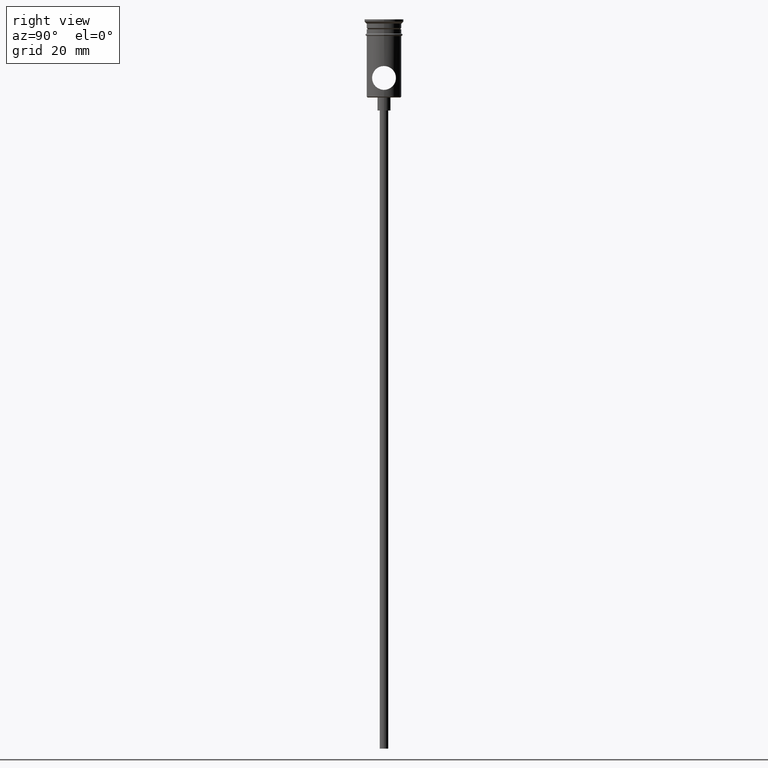
[diagram: clean part render]
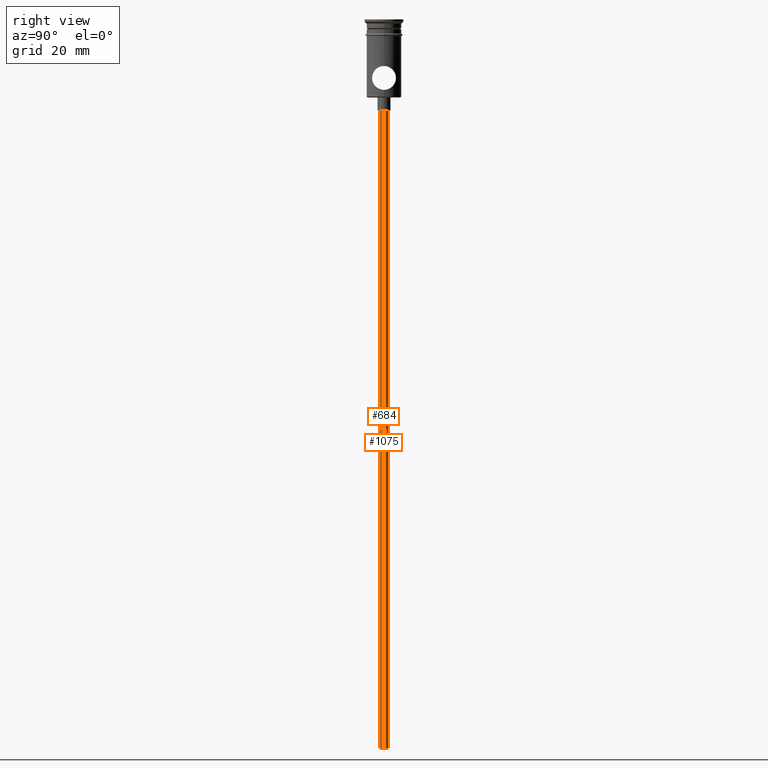
[diagram: same view with one multi-face feature highlighted, each face labeled with its STEP entity id]
A machine part, right view. The highlighted faces form ONE feature: a constant-radius fillet chain: 2 tangent blend faces with common blend radius 1 mm. The faces share edges in the B-rep.
Their STEP definitions:
[1] entity #1075 (Cylinder):
#12 = LINE ( 'NONE', #867, #166 ) ;
#85 = VERTEX_POINT ( 'NONE', #473 ) ;
#95 = CIRCLE ( 'NONE', #1148, 0.9999999999999997780 ) ;
#166 = VECTOR ( 'NONE', #756, 1000.000000000000000 ) ;
#178 = DIRECTION ( 'NONE',  ( -1.000000000000000000, 0.000000000000000000, 0.000000000000000000 ) ) ;
#205 = VERTEX_POINT ( 'NONE', #249 ) ;
#212 = EDGE_CURVE ( 'NONE', #842, #205, #1216, .T. ) ;
#218 = DIRECTION ( 'NONE',  ( -0.000000000000000000, -0.000000000000000000, 1.000000000000000000 ) ) ;
#222 = ORIENTED_EDGE ( 'NONE', *, *, #212, .F. ) ;
#235 = ORIENTED_EDGE ( 'NONE', *, *, #1288, .F. ) ;
#249 = CARTESIAN_POINT ( 'NONE',  ( 0.9999999999999997780, 0.000000000000000000, -20.99999999999999645 ) ) ;
#283 = DIRECTION ( 'NONE',  ( 1.000000000000000000, 0.000000000000000000, 0.000000000000000000 ) ) ;
#338 = ORIENTED_EDGE ( 'NONE', *, *, #1163, .T. ) ;
#378 = EDGE_LOOP ( 'NONE', ( #235, #338, #488, #222 ) ) ;
#388 = DIRECTION ( 'NONE',  ( -0.000000000000000000, -0.000000000000000000, 1.000000000000000000 ) ) ;
#444 = DIRECTION ( 'NONE',  ( 0.000000000000000000, 0.000000000000000000, -1.000000000000000000 ) ) ;
#448 = AXIS2_PLACEMENT_3D ( 'NONE', #1340, #444, #1351 ) ;
#473 = CARTESIAN_POINT ( 'NONE',  ( -0.9999999999999997780, 1.224646799147352961E-16, -20.99999999999999645 ) ) ;
#474 = VECTOR ( 'NONE', #218, 1000.000000000000000 ) ;
#488 = ORIENTED_EDGE ( 'NONE', *, *, #1378, .T. ) ;
#507 = CARTESIAN_POINT ( 'NONE',  ( -0.9999999999999997780, 1.224646799147352961E-16, -167.9999999999999716 ) ) ;
#607 = FACE_OUTER_BOUND ( 'NONE', #378, .T. ) ;
#756 = DIRECTION ( 'NONE',  ( -0.000000000000000000, -0.000000000000000000, 1.000000000000000000 ) ) ;
#804 = CIRCLE ( 'NONE', #448, 0.9999999999999997780 ) ;
#812 = CARTESIAN_POINT ( 'NONE',  ( 0.000000000000000000, 0.000000000000000000, -20.99999999999999645 ) ) ;
#835 = AXIS2_PLACEMENT_3D ( 'NONE', #1139, #388, #283 ) ;
#842 = VERTEX_POINT ( 'NONE', #1186 ) ;
#867 = CARTESIAN_POINT ( 'NONE',  ( -0.9999999999999997780, 1.224646799147352961E-16, -167.9999999999999716 ) ) ;
#913 = CYLINDRICAL_SURFACE ( 'NONE', #835, 0.9999999999999997780 ) ;
#970 = VERTEX_POINT ( 'NONE', #507 ) ;
#1075 = ADVANCED_FACE ( 'NONE', ( #607 ), #913, .T. ) ;
#1117 = DIRECTION ( 'NONE',  ( 0.000000000000000000, 0.000000000000000000, -1.000000000000000000 ) ) ;
#1139 = CARTESIAN_POINT ( 'NONE',  ( 0.000000000000000000, 0.000000000000000000, -167.9999999999999716 ) ) ;
#1148 = AXIS2_PLACEMENT_3D ( 'NONE', #812, #1117, #178 ) ;
#1163 = EDGE_CURVE ( 'NONE', #970, #85, #12, .T. ) ;
#1186 = CARTESIAN_POINT ( 'NONE',  ( 0.9999999999999997780, 0.000000000000000000, -167.9999999999999716 ) ) ;
#1216 = LINE ( 'NONE', #1299, #474 ) ;
#1288 = EDGE_CURVE ( 'NONE', #970, #842, #804, .T. ) ;
#1299 = CARTESIAN_POINT ( 'NONE',  ( 0.9999999999999997780, 0.000000000000000000, -167.9999999999999716 ) ) ;
#1340 = CARTESIAN_POINT ( 'NONE',  ( 0.000000000000000000, 0.000000000000000000, -167.9999999999999716 ) ) ;
#1351 = DIRECTION ( 'NONE',  ( -1.000000000000000000, 0.000000000000000000, 0.000000000000000000 ) ) ;
#1378 = EDGE_CURVE ( 'NONE', #85, #205, #95, .T. ) ;
[2] entity #684 (Cylinder):
#12 = LINE ( 'NONE', #867, #166 ) ;
#77 = DIRECTION ( 'NONE',  ( 1.000000000000000000, 0.000000000000000000, 0.000000000000000000 ) ) ;
#85 = VERTEX_POINT ( 'NONE', #473 ) ;
#165 = AXIS2_PLACEMENT_3D ( 'NONE', #766, #788, #1318 ) ;
#166 = VECTOR ( 'NONE', #756, 1000.000000000000000 ) ;
#205 = VERTEX_POINT ( 'NONE', #249 ) ;
#212 = EDGE_CURVE ( 'NONE', #842, #205, #1216, .T. ) ;
#218 = DIRECTION ( 'NONE',  ( -0.000000000000000000, -0.000000000000000000, 1.000000000000000000 ) ) ;
#249 = CARTESIAN_POINT ( 'NONE',  ( 0.9999999999999997780, 0.000000000000000000, -20.99999999999999645 ) ) ;
#281 = CYLINDRICAL_SURFACE ( 'NONE', #807, 0.9999999999999997780 ) ;
#325 = DIRECTION ( 'NONE',  ( -1.000000000000000000, 0.000000000000000000, 0.000000000000000000 ) ) ;
#473 = CARTESIAN_POINT ( 'NONE',  ( -0.9999999999999997780, 1.224646799147352961E-16, -20.99999999999999645 ) ) ;
#474 = VECTOR ( 'NONE', #218, 1000.000000000000000 ) ;
#501 = FACE_OUTER_BOUND ( 'NONE', #834, .T. ) ;
#507 = CARTESIAN_POINT ( 'NONE',  ( -0.9999999999999997780, 1.224646799147352961E-16, -167.9999999999999716 ) ) ;
#547 = ORIENTED_EDGE ( 'NONE', *, *, #935, .F. ) ;
#566 = CIRCLE ( 'NONE', #996, 0.9999999999999997780 ) ;
#683 = CIRCLE ( 'NONE', #165, 0.9999999999999997780 ) ;
#684 = ADVANCED_FACE ( 'NONE', ( #501 ), #281, .T. ) ;
#742 = ORIENTED_EDGE ( 'NONE', *, *, #212, .T. ) ;
#756 = DIRECTION ( 'NONE',  ( -0.000000000000000000, -0.000000000000000000, 1.000000000000000000 ) ) ;
#766 = CARTESIAN_POINT ( 'NONE',  ( 0.000000000000000000, 0.000000000000000000, -20.99999999999999645 ) ) ;
#788 = DIRECTION ( 'NONE',  ( 0.000000000000000000, 0.000000000000000000, -1.000000000000000000 ) ) ;
#789 = ORIENTED_EDGE ( 'NONE', *, *, #1163, .F. ) ;
#800 = EDGE_CURVE ( 'NONE', #205, #85, #683, .T. ) ;
#807 = AXIS2_PLACEMENT_3D ( 'NONE', #1294, #832, #77 ) ;
#832 = DIRECTION ( 'NONE',  ( -0.000000000000000000, -0.000000000000000000, 1.000000000000000000 ) ) ;
#834 = EDGE_LOOP ( 'NONE', ( #789, #547, #742, #1134 ) ) ;
#842 = VERTEX_POINT ( 'NONE', #1186 ) ;
#867 = CARTESIAN_POINT ( 'NONE',  ( -0.9999999999999997780, 1.224646799147352961E-16, -167.9999999999999716 ) ) ;
#935 = EDGE_CURVE ( 'NONE', #842, #970, #566, .T. ) ;
#970 = VERTEX_POINT ( 'NONE', #507 ) ;
#972 = DIRECTION ( 'NONE',  ( 0.000000000000000000, 0.000000000000000000, -1.000000000000000000 ) ) ;
#996 = AXIS2_PLACEMENT_3D ( 'NONE', #1074, #972, #325 ) ;
#1074 = CARTESIAN_POINT ( 'NONE',  ( 0.000000000000000000, 0.000000000000000000, -167.9999999999999716 ) ) ;
#1134 = ORIENTED_EDGE ( 'NONE', *, *, #800, .T. ) ;
#1163 = EDGE_CURVE ( 'NONE', #970, #85, #12, .T. ) ;
#1186 = CARTESIAN_POINT ( 'NONE',  ( 0.9999999999999997780, 0.000000000000000000, -167.9999999999999716 ) ) ;
#1216 = LINE ( 'NONE', #1299, #474 ) ;
#1294 = CARTESIAN_POINT ( 'NONE',  ( 0.000000000000000000, 0.000000000000000000, -167.9999999999999716 ) ) ;
#1299 = CARTESIAN_POINT ( 'NONE',  ( 0.9999999999999997780, 0.000000000000000000, -167.9999999999999716 ) ) ;
#1318 = DIRECTION ( 'NONE',  ( -1.000000000000000000, 0.000000000000000000, 0.000000000000000000 ) ) ;